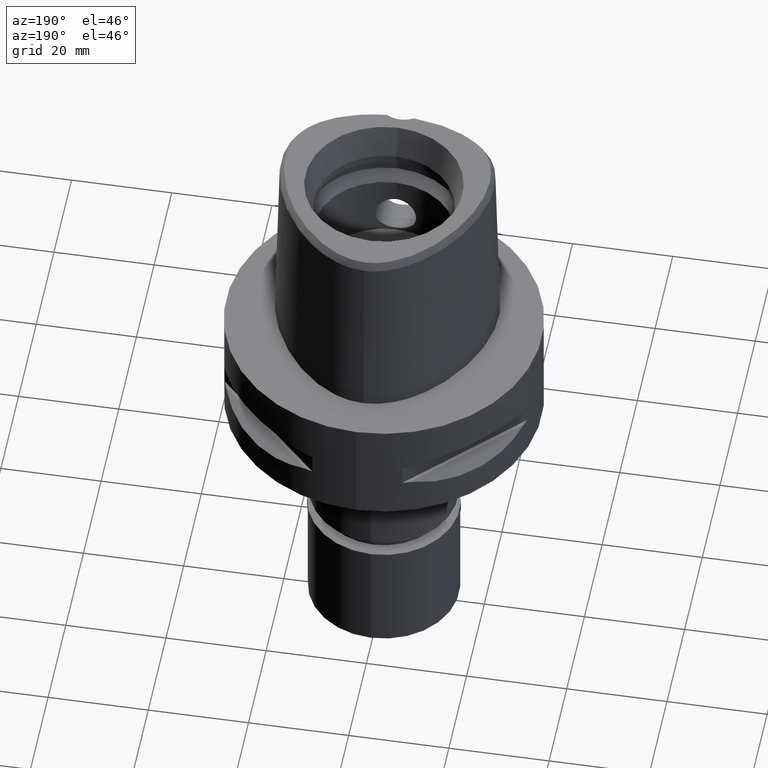
[diagram: clean part render]
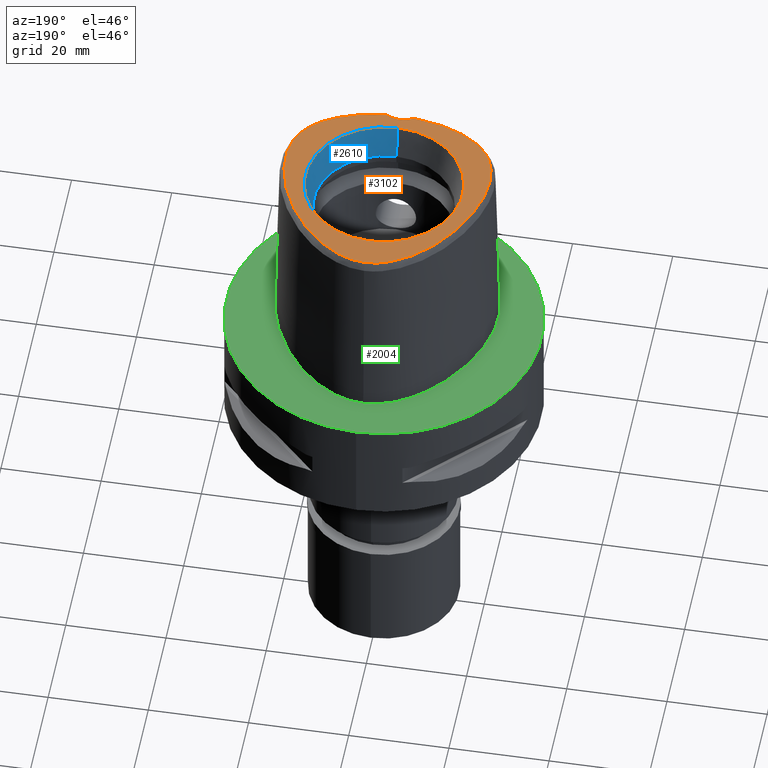
[diagram: same view with three faces highlighted in distinct colors, each labeled with its STEP entity id]
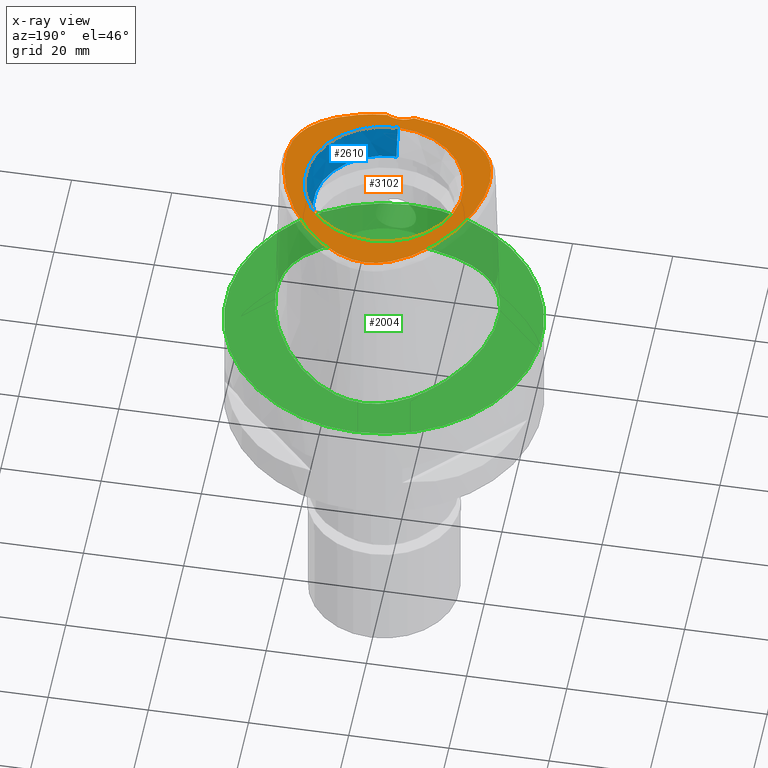
[diagram: x-ray of the same camera — body ghosted, the three highlighted faces saturated]
A machine part, auxiliary view with three faces highlighted in distinct colors.
The next image is the same camera in x-ray (body ghosted, the three faces saturated) — at least one of them is partly hidden behind the body in this view.
Their STEP definitions:

[orange] entity #3102 — the highlighted planar face has unit normal (0, 0, 1).
#25 = CARTESIAN_POINT ( 'NONE',  ( -18.67608643721489159, -11.03561202290967813, 38.00000000000001421 ) ) ;
#40 = CARTESIAN_POINT ( 'NONE',  ( -20.38301517462840096, -3.278344853327444408, 38.00000000000077449 ) ) ;
#62 = CARTESIAN_POINT ( 'NONE',  ( -14.34402387965647740, 12.54761970512988611, 37.99999999999791811 ) ) ;
#64 = CARTESIAN_POINT ( 'NONE',  ( 0.0000000000000000000, 15.71487483155999776, 38.00000000000000000 ) ) ;
#115 = CARTESIAN_POINT ( 'NONE',  ( -1.323674540693891899, 21.61098849316129744, 38.00000000000556355 ) ) ;
#141 = CARTESIAN_POINT ( 'NONE',  ( 7.655962789343429442, 19.09402979099836983, 37.99999999999688072 ) ) ;
#167 = ORIENTED_EDGE ( 'NONE', *, *, #4549, .F. ) ;
#169 = CARTESIAN_POINT ( 'NONE',  ( 7.606839420237615279, -18.00827588386392364, 37.99999999999635492 ) ) ;
#180 = FACE_BOUND ( 'NONE', #2902, .T. ) ;
#208 = CARTESIAN_POINT ( 'NONE',  ( 17.60373714028254710, 7.099883643193334315, 37.99999999999344880 ) ) ;
#223 = CIRCLE ( 'NONE', #1344, 5.000000000000000888 ) ;
#229 = CARTESIAN_POINT ( 'NONE',  ( 19.98468477322758829, -7.807876343103316685, 37.99999999999354117 ) ) ;
#330 = CARTESIAN_POINT ( 'NONE',  ( -2.735698246183316140, 21.34559102902547068, 38.00000000000018474 ) ) ;
#379 = CARTESIAN_POINT ( 'NONE',  ( -17.45119705493717177, -12.68365517585013613, 38.00000000000408562 ) ) ;
#428 = CARTESIAN_POINT ( 'NONE',  ( -19.54919922642418584, -9.228169790568388819, 38.00000000000528644 ) ) ;
#457 = CARTESIAN_POINT ( 'NONE',  ( 5.894487344450263677, 20.13186406532448558, 37.99999999999035794 ) ) ;
#488 = CARTESIAN_POINT ( 'NONE',  ( 2.736932690727115869, 21.34527940056887374, 37.99999999999725020 ) ) ;
#536 = CARTESIAN_POINT ( 'NONE',  ( 11.32341394162598647, -16.80569392800570938, 37.99999999999428724 ) ) ;
#579 = CARTESIAN_POINT ( 'NONE',  ( -2.682279906006999948, -18.78035848609999903, 38.00000000000000000 ) ) ;
#592 = CARTESIAN_POINT ( 'NONE',  ( 20.27923816685851222, -6.179850483268098493, 38.00000000000090239 ) ) ;
#614 = CARTESIAN_POINT ( 'NONE',  ( 3.529311563348779046, -18.70747079909717669, 37.99999999999515410 ) ) ;
#636 = CARTESIAN_POINT ( 'NONE',  ( 9.524842839488682600, 17.70516372194563104, 38.00000000000618172 ) ) ;
#642 = VERTEX_POINT ( 'NONE', #2812 ) ;
#708 = AXIS2_PLACEMENT_3D ( 'NONE', #3935, #2550, #4675 ) ;
#713 = CARTESIAN_POINT ( 'NONE',  ( -8.930096025510247060, -17.65000298921743749, 38.00000000000247269 ) ) ;
#739 = CARTESIAN_POINT ( 'NONE',  ( -6.759433772716738176, 19.65454812512971117, 37.99999999999712941 ) ) ;
#762 = CARTESIAN_POINT ( 'NONE',  ( -13.33457781970010103, -15.85148397417762745, 38.00000000000237321 ) ) ;
#765 = CARTESIAN_POINT ( 'NONE',  ( -15.71788912669212834, -14.29843101565890429, 37.99999999999246825 ) ) ;
#785 = CARTESIAN_POINT ( 'NONE',  ( -16.36032397153829621, -13.76458520344696623, 38.00000000000706990 ) ) ;
#796 = EDGE_CURVE ( 'NONE', #2696, #642, #3811, .T. ) ;
#814 = CARTESIAN_POINT ( 'NONE',  ( -9.524337278001539175, 17.70558492631560554, 37.99999999999879208 ) ) ;
#816 = CARTESIAN_POINT ( 'NONE',  ( 0.2185816947241155939, 21.68728795389857211, 38.00000000000073896 ) ) ;
#840 = CARTESIAN_POINT ( 'NONE',  ( 4.255661039973027471, 20.86618068830087580, 37.99999999999509015 ) ) ;
#911 = ORIENTED_EDGE ( 'NONE', *, *, #796, .F. ) ;
#941 = CARTESIAN_POINT ( 'NONE',  ( 18.67722910598130071, -11.03372143228235558, 37.99999999999684519 ) ) ;
#972 = CARTESIAN_POINT ( 'NONE',  ( 19.26272899268147754, 2.870227893750123105, 37.99999999999556621 ) ) ;
#973 = CARTESIAN_POINT ( 'NONE',  ( 0.0000000000000000000, -23.00000000000000000, 38.00000000000000000 ) ) ;
#997 = CARTESIAN_POINT ( 'NONE',  ( 6.196495988003739797, -18.31673538865457473, 38.00000000000121503 ) ) ;
#1023 = CARTESIAN_POINT ( 'NONE',  ( 2.682287482605000051, -18.78036330228999873, 38.00000000000000000 ) ) ;
#1046 = CARTESIAN_POINT ( 'NONE',  ( 19.28677546797197095, -9.867757137505920539, 37.99999999999603517 ) ) ;
#1095 = CARTESIAN_POINT ( 'NONE',  ( -18.24302769442392957, 5.671232572958031959, 37.99999999999445066 ) ) ;
#1114 = CIRCLE ( 'NONE', #708, 15.71487483155999776 ) ;
#1120 = CARTESIAN_POINT ( 'NONE',  ( -20.16012968312119114, -1.009698174524792602, 37.99999999999992184 ) ) ;
#1151 = CARTESIAN_POINT ( 'NONE',  ( -18.31748213707749073, -11.58791794388147522, 37.99999999999845812 ) ) ;
#1171 = CARTESIAN_POINT ( 'NONE',  ( -16.88647904405700473, 8.517821442302251356, 38.00000000000424905 ) ) ;
#1198 = DIRECTION ( 'NONE',  ( 1.000000000000000000, 0.0000000000000000000, 0.0000000000000000000 ) ) ;
#1333 = CARTESIAN_POINT ( 'NONE',  ( 16.09765529146882201, 9.909410920131987766, 37.99999999999207034 ) ) ;
#1344 = AXIS2_PLACEMENT_3D ( 'NONE', #973, #3165, #4350 ) ;
#1357 = CARTESIAN_POINT ( 'NONE',  ( 16.93855157777811016, -13.22377441789145713, 37.99999999999140954 ) ) ;
#1373 = ORIENTED_EDGE ( 'NONE', *, *, #4467, .F. ) ;
#1381 = CARTESIAN_POINT ( 'NONE',  ( 17.45306278053243787, -12.68156296993776699, 37.99999999999651834 ) ) ;
#1400 = CARTESIAN_POINT ( 'NONE',  ( 19.78323211893074429, -8.541156231035577306, 37.99999999999393907 ) ) ;
#1474 = CARTESIAN_POINT ( 'NONE',  ( -20.40060226222573192, -4.311417605381429041, 38.00000000000243716 ) ) ;
#1501 = CARTESIAN_POINT ( 'NONE',  ( -19.78262210840022917, -8.543146992552911101, 38.00000000000309086 ) ) ;
#1526 = VERTEX_POINT ( 'NONE', #64 ) ;
#1530 = CARTESIAN_POINT ( 'NONE',  ( -20.15090095364692857, -7.024227649787118999, 38.00000000000659384 ) ) ;
#1551 = CARTESIAN_POINT ( 'NONE',  ( -19.26324493738890808, 2.868570891457058458, 38.00000000000454747 ) ) ;
#1574 = CARTESIAN_POINT ( 'NONE',  ( -5.893543501600752244, 20.13235399352085864, 38.00000000000321876 ) ) ;
#1577 = CARTESIAN_POINT ( 'NONE',  ( 5.059249257021400048, 20.53399274679341957, 37.99999999999879918 ) ) ;
#1643 = B_SPLINE_CURVE_WITH_KNOTS ( 'NONE', 3,
 ( #2003, #816, #1657, #4178, #3828, #488, #1946, #840, #1577, #457, #3475, #141, #2830, #636, #3187, #4674, #2503, #2898, #2081, #1782, #1333, #3547, #208, #4698, #3955, #972, #3262, #1708, #2483, #2154, #4750, #3902, #2862, #592, #4371, #229, #1400, #2104, #1046, #1758, #941, #1733, #3239, #1381, #1357, #4728, #3933, #4329, #3565, #3878, #3210, #536, #1684, #3614, #169, #997, #2048, #614, #2810, #2878 ),
 .UNSPECIFIED., .F., .F.,
 ( 4, 1, 1, 1, 1, 1, 1, 1, 1, 1, 1, 1, 1, 1, 1, 1, 1, 1, 1, 1, 1, 1, 1, 1, 1, 1, 1, 1, 1, 1, 1, 1, 1, 1, 1, 1, 1, 1, 1, 1, 1, 1, 1, 1, 1, 1, 1, 1, 1, 1, 1, 1, 1, 1, 1, 1, 1, 4 ),
 ( 0.0000000000000000000, 0.01775854187129999318, 0.03551708374169992855, 0.05327562561200005486, 0.07103416748239999023, 0.08879270935270000553, 0.1065512512231000519, 0.1243097930933999562, 0.1420683349638000026, 0.1598268768341000179, 0.1775854187044000332, 0.1953439605747999686, 0.2131025024450999839, 0.2308610443155000302, 0.2486195861857999345, 0.2663781280563000120, 0.2841366699266000273, 0.3018952117970000737, 0.3196537536672999780, 0.3374122955377000244, 0.3551708374080000397, 0.3729293792782999439, 0.3906879211486999903, 0.4084464630190000056, 0.4262050048894000520, 0.4439635467596999563, 0.4617220886301000027, 0.4794806305004000180, 0.4972391723707999533, 0.5149977142410999686, 0.5327562561113999839, 0.5505147979818000303, 0.5682733398521000456, 0.5860318817224999810, 0.6037904235927999963, 0.6215489654632000427, 0.6393075073334999470, 0.6570660492038999934, 0.6748245910742000087, 0.6925831329445000240, 0.7103416748149000703, 0.7281002166851999746, 0.7458587585556000210, 0.7636173004259000363, 0.7813758422962999717, 0.7991343841665999870, 0.8168929260370000334, 0.8346514679073000487, 0.8524100097776999840, 0.8701685516479999993, 0.8879270935183000146, 0.9056856353886799660, 0.9234441772589799813, 0.9412027191293600437, 0.9589612609997000270, 0.9767198028700500023, 0.9944783447403919840, 1.000000000000000000 ),
 .UNSPECIFIED. ) ;
#1657 = CARTESIAN_POINT ( 'NONE',  ( 0.6513209347955627448, 21.67370899611253776, 37.99999999999719336 ) ) ;
#1684 = CARTESIAN_POINT ( 'NONE',  ( 10.17751632998327871, -17.24426134458635218, 37.99999999999393907 ) ) ;
#1708 = CARTESIAN_POINT ( 'NONE',  ( 19.94150023628100143, 0.2261566111946153868, 38.00000000000386535 ) ) ;
#1733 = CARTESIAN_POINT ( 'NONE',  ( 18.31883910943015792, -11.58595831187905922, 37.99999999999739941 ) ) ;
#1758 = CARTESIAN_POINT ( 'NONE',  ( 18.99619228226299583, -10.46780014453647922, 37.99999999999157296 ) ) ;
#1782 = CARTESIAN_POINT ( 'NONE',  ( 15.24661770199270094, 11.25762885478263620, 37.99999999999809575 ) ) ;
#1857 = CARTESIAN_POINT ( 'NONE',  ( -13.40435640711313425, 13.76268382997153417, 37.99999999999719336 ) ) ;
#1877 = CARTESIAN_POINT ( 'NONE',  ( -3.522896839654285905, -18.70811514173194823, 37.99999999999606359 ) ) ;
#1924 = CARTESIAN_POINT ( 'NONE',  ( -16.93638123745366642, -13.22593246128692890, 37.99999999999509015 ) ) ;
#1944 = CARTESIAN_POINT ( 'NONE',  ( -8.578220530113545905, 18.44656747109329942, 38.00000000000211742 ) ) ;
#1946 = CARTESIAN_POINT ( 'NONE',  ( 3.482188079159817651, 21.13472718027783515, 37.99999999999651124 ) ) ;
#2003 = CARTESIAN_POINT ( 'NONE',  ( -3.470663397159000143E-11, 21.68728795390000030, 38.00000000000000000 ) ) ;
#2010 = FACE_OUTER_BOUND ( 'NONE', #4819, .T. ) ;
#2048 = CARTESIAN_POINT ( 'NONE',  ( 4.715576077241831143, -18.56597918135709691, 37.99999999999436540 ) ) ;
#2073 = CARTESIAN_POINT ( 'NONE',  ( 0.0000000000000000000, -15.71487483155999776, 38.00000000000000000 ) ) ;
#2081 = CARTESIAN_POINT ( 'NONE',  ( 14.34383722811242201, 12.54786717290306264, 37.99999999999106848 ) ) ;
#2104 = CARTESIAN_POINT ( 'NONE',  ( 19.54993126782195034, -9.226212439885991046, 38.00000000000127898 ) ) ;
#2154 = CARTESIAN_POINT ( 'NONE',  ( 20.30478359882114958, -2.175347700950478469, 37.99999999999813127 ) ) ;
#2161 = ORIENTED_EDGE ( 'NONE', *, *, #3814, .F. ) ;
#2226 = CARTESIAN_POINT ( 'NONE',  ( -3.481017203588589570, 21.13509756881191137, 37.99999999999405276 ) ) ;
#2253 = CARTESIAN_POINT ( 'NONE',  ( -4.706994425064301879, -18.56721852572246689, 38.00000000000279954 ) ) ;
#2276 = CARTESIAN_POINT ( 'NONE',  ( -18.99520880204203621, -10.46968343926149281, 38.00000000000094502 ) ) ;
#2329 = CARTESIAN_POINT ( 'NONE',  ( -7.655222869371701933, 19.09452359226145646, 37.99999999999619149 ) ) ;
#2394 = DIRECTION ( 'NONE',  ( 0.0000000000000000000, 0.0000000000000000000, 1.000000000000000000 ) ) ;
#2409 = CARTESIAN_POINT ( 'NONE',  ( -0.6498990081534614660, 21.67378274708271135, 37.99999999999803890 ) ) ;
#2483 = CARTESIAN_POINT ( 'NONE',  ( 20.15982952131960104, -1.007721426051716440, 37.99999999999926104 ) ) ;
#2503 = CARTESIAN_POINT ( 'NONE',  ( 12.44125753246576949, 14.89118158853743523, 37.99999999999448619 ) ) ;
#2550 = DIRECTION ( 'NONE',  ( 0.0000000000000000000, 0.0000000000000000000, 1.000000000000000000 ) ) ;
#2594 = CARTESIAN_POINT ( 'NONE',  ( -15.24692477332176388, 11.25717358965905568, 38.00000000000036238 ) ) ;
#2618 = CARTESIAN_POINT ( 'NONE',  ( -12.44116897270992972, 14.89128547410102499, 37.99999999999888445 ) ) ;
#2667 = CARTESIAN_POINT ( 'NONE',  ( -16.09805956313287112, 9.908742513516449080, 38.00000000000366640 ) ) ;
#2689 = CARTESIAN_POINT ( 'NONE',  ( -15.00295592773549025, -14.82617991125483314, 37.99999999999972999 ) ) ;
#2696 = VERTEX_POINT ( 'NONE', #579 ) ;
#2810 = CARTESIAN_POINT ( 'NONE',  ( 2.845098933833441368, -18.76733062685951481, 37.99999999999702993 ) ) ;
#2812 = CARTESIAN_POINT ( 'NONE',  ( -3.470663397159000143E-11, 21.68728795390000030, 38.00000000000000000 ) ) ;
#2830 = CARTESIAN_POINT ( 'NONE',  ( 8.578848111817299227, 18.44609846599188074, 37.99999999999659650 ) ) ;
#2862 = CARTESIAN_POINT ( 'NONE',  ( 20.36412151360626410, -5.276385427454122201, 37.99999999999447908 ) ) ;
#2878 = CARTESIAN_POINT ( 'NONE',  ( 2.682287482605000051, -18.78036330228999873, 38.00000000000000000 ) ) ;
#2898 = CARTESIAN_POINT ( 'NONE',  ( 13.40430406168293942, 13.76274261012875755, 37.99999999999908340 ) ) ;
#2902 = EDGE_LOOP ( 'NONE', ( #4182, #1373 ) ) ;
#2928 = CIRCLE ( 'NONE', #4003, 15.71487483155999776 ) ;
#3001 = CARTESIAN_POINT ( 'NONE',  ( -7.599370508970371141, -18.01010694911391141, 38.00000000000679989 ) ) ;
#3004 = DIRECTION ( 'NONE',  ( 0.0000000000000000000, -1.000000000000000000, 0.0000000000000000000 ) ) ;
#3024 = CARTESIAN_POINT ( 'NONE',  ( -20.30498420086953004, -2.177378896258391539, 38.00000000000490274 ) ) ;
#3043 = CARTESIAN_POINT ( 'NONE',  ( -17.60426951086819258, 7.098774535281752840, 37.99999999999294431 ) ) ;
#3066 = CARTESIAN_POINT ( 'NONE',  ( -3.470663397159000143E-11, 21.68728795390000030, 38.00000000000000000 ) ) ;
#3102 = ADVANCED_FACE ( 'NONE', ( #2010, #180 ), #3864, .T. ) ;
#3165 = DIRECTION ( 'NONE',  ( 0.0000000000000000000, 0.0000000000000000000, 1.000000000000000000 ) ) ;
#3187 = CARTESIAN_POINT ( 'NONE',  ( 10.48999540691167276, 16.86597469870190125, 37.99999999999670308 ) ) ;
#3210 = CARTESIAN_POINT ( 'NONE',  ( 12.37622418509569044, -16.33871033286285268, 37.99999999999388933 ) ) ;
#3239 = CARTESIAN_POINT ( 'NONE',  ( 17.91165267839130237, -12.13575389397900750, 38.00000000000126477 ) ) ;
#3262 = CARTESIAN_POINT ( 'NONE',  ( 19.64387775268148317, 1.522048414458375021, 37.99999999999707967 ) ) ;
#3333 = CARTESIAN_POINT ( 'NONE',  ( -6.188376196366513149, -18.31830638231506114, 37.99999999999436540 ) ) ;
#3352 = CARTESIAN_POINT ( 'NONE',  ( -12.37132652997228099, -16.34104299087905687, 37.99999999999666045 ) ) ;
#3375 = CARTESIAN_POINT ( 'NONE',  ( -2.841965291530551774, -18.76757795571729304, 37.99999999999782574 ) ) ;
#3398 = CARTESIAN_POINT ( 'NONE',  ( -11.31790883120888935, -16.80796958613577274, 37.99999999999914735 ) ) ;
#3475 = CARTESIAN_POINT ( 'NONE',  ( 6.760281394351802753, 19.65404668909722119, 37.99999999999210587 ) ) ;
#3547 = CARTESIAN_POINT ( 'NONE',  ( 16.88599964843142587, 8.518708218769912577, 37.99999999999853628 ) ) ;
#3565 = CARTESIAN_POINT ( 'NONE',  ( 14.21382211799154582, -15.34284287400445734, 37.99999999999521805 ) ) ;
#3614 = CARTESIAN_POINT ( 'NONE',  ( 8.936919536467341274, -17.64796721715554995, 37.99999999999339906 ) ) ;
#3647 = EDGE_CURVE ( 'NONE', #4668, #1526, #2928, .T. ) ;
#3705 = CARTESIAN_POINT ( 'NONE',  ( -10.17136073854879896, -17.24644253470381727, 38.00000000000124345 ) ) ;
#3726 = CARTESIAN_POINT ( 'NONE',  ( -19.98419490691720313, -7.809898894995596308, 37.99999999999788969 ) ) ;
#3756 = CARTESIAN_POINT ( 'NONE',  ( -17.91005512243496511, -12.13778127739882429, 38.00000000000321165 ) ) ;
#3776 = CARTESIAN_POINT ( 'NONE',  ( -19.64434054693428067, 1.520253387635862818, 37.99999999999959499 ) ) ;
#3811 = B_SPLINE_CURVE_WITH_KNOTS ( 'NONE', 3,
 ( #4104, #3375, #1877, #2253, #3333, #3001, #713, #3705, #3398, #3352, #762, #4478, #2689, #765, #785, #1924, #379, #3756, #1151, #25, #2276, #4082, #428, #1501, #3726, #1530, #4449, #4823, #1474, #40, #3024, #1120, #4152, #3776, #1551, #4500, #1095, #3043, #1171, #2667, #2594, #62, #1857, #2618, #4125, #4520, #814, #1944, #2329, #739, #1574, #4426, #4056, #2226, #330, #3876, #115, #2409, #3899, #3066 ),
 .UNSPECIFIED., .F., .F.,
 ( 4, 1, 1, 1, 1, 1, 1, 1, 1, 1, 1, 1, 1, 1, 1, 1, 1, 1, 1, 1, 1, 1, 1, 1, 1, 1, 1, 1, 1, 1, 1, 1, 1, 1, 1, 1, 1, 1, 1, 1, 1, 1, 1, 1, 1, 1, 1, 1, 1, 1, 1, 1, 1, 1, 1, 1, 1, 4 ),
 ( 0.0000000000000000000, 0.005420919554200098744, 0.02318126027639999531, 0.04094160099879995407, 0.05870194172099996166, 0.07646228244330000035, 0.09422262316550000794, 0.1119829638877999356, 0.1297433046099999432, 0.1475036453321999508, 0.1652639860544999895, 0.1830243267768000281, 0.2007846674991000668, 0.2185450082212999634, 0.2363053489436000021, 0.2540656896658000097, 0.2718260303881000484, 0.2895863711103000560, 0.3073467118325999836, 0.3251070525547999912, 0.3428673932771000299, 0.3606277339994000686, 0.3783880747216000762, 0.3961484154438998928, 0.4139087561661000114, 0.4316690968884000501, 0.4494294376106000577, 0.4671897783328999854, 0.4849501190552000240, 0.5027104597774000316, 0.5204708004996999593, 0.5382311412219000779, 0.5559914819442000056, 0.5737518226664000132, 0.5915121633886999408, 0.6092725041108999484, 0.6270328448331999871, 0.6447931855555000258, 0.6625535262777000334, 0.6803138669999999610, 0.6980742077221999686, 0.7158345484445000073, 0.7335948891667000149, 0.7513552298890000536, 0.7691155706112000612, 0.7868759113336000199, 0.8046362520558000275, 0.8223965927780999552, 0.8401569335002999628, 0.8579172742224999704, 0.8756776149448000091, 0.8934379556670000166, 0.9111982963893099363, 0.9289586371115700070, 0.9467189778338299666, 0.9644793185560800453, 0.9822396592783400049, 1.000000000000000000 ),
 .UNSPECIFIED. ) ;
#3814 = EDGE_CURVE ( 'NONE', #642, #4562, #1643, .T. ) ;
#3828 = CARTESIAN_POINT ( 'NONE',  ( 2.018320379028506917, 21.50256508436126524, 37.99999999999727152 ) ) ;
#3864 = PLANE ( 'NONE',  #4313 ) ;
#3876 = CARTESIAN_POINT ( 'NONE',  ( -2.017025177696247784, 21.50280829368237079, 37.99999999999483435 ) ) ;
#3878 = CARTESIAN_POINT ( 'NONE',  ( 13.33890749495940220, -15.84912955619854280, 37.99999999999117506 ) ) ;
#3899 = CARTESIAN_POINT ( 'NONE',  ( -0.2181979014508364789, 21.68728795389106523, 37.99999999999602807 ) ) ;
#3902 = CARTESIAN_POINT ( 'NONE',  ( 20.40062138794844060, -4.309334958867312437, 38.00000000000334666 ) ) ;
#3933 = CARTESIAN_POINT ( 'NONE',  ( 15.72078707640354978, -14.29615620309121482, 37.99999999999423039 ) ) ;
#3935 = CARTESIAN_POINT ( 'NONE',  ( 0.0000000000000000000, 0.0000000000000000000, 38.00000000000000000 ) ) ;
#3955 = CARTESIAN_POINT ( 'NONE',  ( 18.79595068776236033, 4.257753965102206273, 37.99999999999563727 ) ) ;
#4003 = AXIS2_PLACEMENT_3D ( 'NONE', #4780, #4429, #3004 ) ;
#4056 = CARTESIAN_POINT ( 'NONE',  ( -4.254559144977628549, 20.86660163697029446, 37.99999999999715783 ) ) ;
#4082 = CARTESIAN_POINT ( 'NONE',  ( -19.28591707036418512, -9.869682450886472225, 38.00000000000019895 ) ) ;
#4104 = CARTESIAN_POINT ( 'NONE',  ( -2.682279906006999948, -18.78035848609999903, 38.00000000000000000 ) ) ;
#4125 = CARTESIAN_POINT ( 'NONE',  ( -11.46564124494471670, 15.92741340513573967, 37.99999999999416644 ) ) ;
#4152 = CARTESIAN_POINT ( 'NONE',  ( -19.94188961899223500, 0.2242544969876070216, 38.00000000000031264 ) ) ;
#4178 = CARTESIAN_POINT ( 'NONE',  ( 1.325020189552541972, 21.61081414409233403, 37.99999999999968026 ) ) ;
#4182 = ORIENTED_EDGE ( 'NONE', *, *, #3647, .F. ) ;
#4313 = AXIS2_PLACEMENT_3D ( 'NONE', #4529, #2394, #1198 ) ;
#4329 = CARTESIAN_POINT ( 'NONE',  ( 15.00628712263586451, -14.82385870794742999, 37.99999999999500488 ) ) ;
#4350 = DIRECTION ( 'NONE',  ( 0.0000000000000000000, 1.000000000000000000, 0.0000000000000000000 ) ) ;
#4371 = CARTESIAN_POINT ( 'NONE',  ( 20.15127154947524701, -7.022178451341056338, 38.00000000000287059 ) ) ;
#4426 = CARTESIAN_POINT ( 'NONE',  ( -5.058220461389248968, 20.53445508814270326, 37.99999999999666755 ) ) ;
#4429 = DIRECTION ( 'NONE',  ( 0.0000000000000000000, 0.0000000000000000000, 1.000000000000000000 ) ) ;
#4449 = CARTESIAN_POINT ( 'NONE',  ( -20.27898581532366151, -6.181921586190108897, 38.00000000000118661 ) ) ;
#4467 = EDGE_CURVE ( 'NONE', #1526, #4668, #1114, .T. ) ;
#4478 = CARTESIAN_POINT ( 'NONE',  ( -14.21001600787482921, -15.34519100086069798, 38.00000000000105871 ) ) ;
#4500 = CARTESIAN_POINT ( 'NONE',  ( -18.79649882724566368, 4.256255933891596399, 37.99999999999237588 ) ) ;
#4520 = CARTESIAN_POINT ( 'NONE',  ( -10.48962422759924351, 16.86631853279302362, 38.00000000000651568 ) ) ;
#4529 = CARTESIAN_POINT ( 'NONE',  ( 0.0000000000000000000, 0.0000000000000000000, 38.00000000000000000 ) ) ;
#4549 = EDGE_CURVE ( 'NONE', #4562, #2696, #223, .T. ) ;
#4562 = VERTEX_POINT ( 'NONE', #1023 ) ;
#4668 = VERTEX_POINT ( 'NONE', #2073 ) ;
#4674 = CARTESIAN_POINT ( 'NONE',  ( 11.46587147800244644, 15.92717600803037925, 37.99999999999953815 ) ) ;
#4675 = DIRECTION ( 'NONE',  ( 0.0000000000000000000, 1.000000000000000000, 0.0000000000000000000 ) ) ;
#4698 = CARTESIAN_POINT ( 'NONE',  ( 18.24247239569431400, 5.672548708072588042, 37.99999999999821654 ) ) ;
#4728 = CARTESIAN_POINT ( 'NONE',  ( 16.36283630828681268, -13.76236604535098174, 38.00000000000094502 ) ) ;
#4750 = CARTESIAN_POINT ( 'NONE',  ( 20.38292172607308572, -3.276278498261608885, 37.99999999999542410 ) ) ;
#4780 = CARTESIAN_POINT ( 'NONE',  ( 0.0000000000000000000, 0.0000000000000000000, 38.00000000000000000 ) ) ;
#4819 = EDGE_LOOP ( 'NONE', ( #2161, #911, #167 ) ) ;
#4823 = CARTESIAN_POINT ( 'NONE',  ( -20.36398648680008350, -5.278470727085138314, 37.99999999999999289 ) ) ;

[blue] entity #2610 — the highlighted conical surface has half-angle 15 deg.
#64 = CARTESIAN_POINT ( 'NONE',  ( 0.0000000000000000000, 15.71487483155999776, 38.00000000000000000 ) ) ;
#251 = LINE ( 'NONE', #1416, #4542 ) ;
#721 = CONICAL_SURFACE ( 'NONE', #3071, 14.85743741577999977, 0.2617993877991000029 ) ;
#830 = VERTEX_POINT ( 'NONE', #3113 ) ;
#926 = CARTESIAN_POINT ( 'NONE',  ( 0.0000000000000000000, 14.00000000000000000, 31.60000000000000142 ) ) ;
#1416 = CARTESIAN_POINT ( 'NONE',  ( 0.0000000000000000000, -14.00000000000000000, 31.60000000000000142 ) ) ;
#1480 = ORIENTED_EDGE ( 'NONE', *, *, #3484, .F. ) ;
#1526 = VERTEX_POINT ( 'NONE', #64 ) ;
#1638 = ORIENTED_EDGE ( 'NONE', *, *, #3647, .T. ) ;
#1746 = DIRECTION ( 'NONE',  ( 0.0000000000000000000, 1.000000000000000000, 0.0000000000000000000 ) ) ;
#1771 = CARTESIAN_POINT ( 'NONE',  ( 0.0000000000000000000, 0.0000000000000000000, 34.79999999999999716 ) ) ;
#1812 = DIRECTION ( 'NONE',  ( 0.0000000000000000000, 0.0000000000000000000, 1.000000000000000000 ) ) ;
#2051 = DIRECTION ( 'NONE',  ( 0.0000000000000000000, 0.0000000000000000000, 1.000000000000000000 ) ) ;
#2073 = CARTESIAN_POINT ( 'NONE',  ( 0.0000000000000000000, -15.71487483155999776, 38.00000000000000000 ) ) ;
#2171 = EDGE_CURVE ( 'NONE', #830, #4668, #251, .T. ) ;
#2206 = EDGE_LOOP ( 'NONE', ( #1480, #3605, #4046, #1638 ) ) ;
#2256 = DIRECTION ( 'NONE',  ( 0.0000000000000000000, 0.2588190451025869088, 0.9659258262890505486 ) ) ;
#2610 = ADVANCED_FACE ( 'NONE', ( #3294 ), #721, .F. ) ;
#2699 = VECTOR ( 'NONE', #2256, 1000.000000000000000 ) ;
#2831 = CIRCLE ( 'NONE', #3438, 14.00000000000000000 ) ;
#2928 = CIRCLE ( 'NONE', #4003, 15.71487483155999776 ) ;
#3004 = DIRECTION ( 'NONE',  ( 0.0000000000000000000, -1.000000000000000000, 0.0000000000000000000 ) ) ;
#3071 = AXIS2_PLACEMENT_3D ( 'NONE', #1771, #1812, #1746 ) ;
#3081 = VERTEX_POINT ( 'NONE', #926 ) ;
#3113 = CARTESIAN_POINT ( 'NONE',  ( 0.0000000000000000000, -14.00000000000000000, 31.60000000000000142 ) ) ;
#3191 = CARTESIAN_POINT ( 'NONE',  ( 0.0000000000000000000, 0.0000000000000000000, 31.60000000000000142 ) ) ;
#3294 = FACE_OUTER_BOUND ( 'NONE', #2206, .T. ) ;
#3438 = AXIS2_PLACEMENT_3D ( 'NONE', #3191, #2051, #3548 ) ;
#3484 = EDGE_CURVE ( 'NONE', #3081, #1526, #3707, .T. ) ;
#3548 = DIRECTION ( 'NONE',  ( 0.0000000000000000000, -1.000000000000000000, 0.0000000000000000000 ) ) ;
#3605 = ORIENTED_EDGE ( 'NONE', *, *, #4497, .F. ) ;
#3647 = EDGE_CURVE ( 'NONE', #4668, #1526, #2928, .T. ) ;
#3707 = LINE ( 'NONE', #4084, #2699 ) ;
#4003 = AXIS2_PLACEMENT_3D ( 'NONE', #4780, #4429, #3004 ) ;
#4046 = ORIENTED_EDGE ( 'NONE', *, *, #2171, .T. ) ;
#4084 = CARTESIAN_POINT ( 'NONE',  ( 0.0000000000000000000, 14.00000000000000000, 31.60000000000000142 ) ) ;
#4364 = DIRECTION ( 'NONE',  ( 0.0000000000000000000, -0.2588190451025869088, 0.9659258262890505486 ) ) ;
#4429 = DIRECTION ( 'NONE',  ( 0.0000000000000000000, 0.0000000000000000000, 1.000000000000000000 ) ) ;
#4497 = EDGE_CURVE ( 'NONE', #830, #3081, #2831, .T. ) ;
#4542 = VECTOR ( 'NONE', #4364, 1000.000000000000000 ) ;
#4668 = VERTEX_POINT ( 'NONE', #2073 ) ;
#4780 = CARTESIAN_POINT ( 'NONE',  ( 0.0000000000000000000, 0.0000000000000000000, 38.00000000000000000 ) ) ;

[green] entity #2004 — the highlighted planar face has unit normal (0, 0, -1).
#17 = CARTESIAN_POINT ( 'NONE',  ( 16.95889173002427341, -15.67838867706965900, -2.630565840567970770E-07 ) ) ;
#65 = CARTESIAN_POINT ( 'NONE',  ( -14.67337964306607923, -17.21410156051415541, 9.097698115689833998E-08 ) ) ;
#113 = CARTESIAN_POINT ( 'NONE',  ( 18.06826689099458605, 10.43171875330947174, -2.630565840567970770E-07 ) ) ;
#134 = CARTESIAN_POINT ( 'NONE',  ( 20.74942741502001908, 4.657187502242146948, -2.630565840567970770E-07 ) ) ;
#186 = DIRECTION ( 'NONE',  ( 0.0000000000000000000, -1.000000000000000000, 0.0000000000000000000 ) ) ;
#206 = CARTESIAN_POINT ( 'NONE',  ( 0.0000000000000000000, 0.0000000000000000000, 0.0000000000000000000 ) ) ;
#244 = CIRCLE ( 'NONE', #4156, 31.50000000000000000 ) ;
#292 = EDGE_CURVE ( 'NONE', #4772, #1871, #2471, .T. ) ;
#374 = CARTESIAN_POINT ( 'NONE',  ( 2.113823673456931118, -20.67500000657368275, -2.630565840567970770E-07 ) ) ;
#406 = CARTESIAN_POINT ( 'NONE',  ( 0.0000000000000000000, -31.50000000000000000, 0.0000000000000000000 ) ) ;
#425 = CARTESIAN_POINT ( 'NONE',  ( 19.64947366396549100, -12.82525391012334914, -2.630565840567970770E-07 ) ) ;
#430 = CARTESIAN_POINT ( 'NONE',  ( -5.098437016434184343, 22.52602538850953806, 9.097698115689833998E-08 ) ) ;
#810 = CARTESIAN_POINT ( 'NONE',  ( 18.56841065620621833, -14.16937988734157550, -2.630565840567970770E-07 ) ) ;
#896 = CARTESIAN_POINT ( 'NONE',  ( -16.95889172452467264, -15.67838867007484360, 9.097698115689833998E-08 ) ) ;
#918 = CARTESIAN_POINT ( 'NONE',  ( -14.40795638783079546, 15.64093749852462523, 9.097698115689833998E-08 ) ) ;
#934 = CARTESIAN_POINT ( 'NONE',  ( 21.97832648437702474, -0.2810937488494387182, -2.630565840567970770E-07 ) ) ;
#1032 = EDGE_LOOP ( 'NONE', ( #2600, #2773 ) ) ;
#1087 = EDGE_CURVE ( 'NONE', #1871, #4772, #244, .T. ) ;
#1291 = CARTESIAN_POINT ( 'NONE',  ( -20.74942740664785390, 4.657187499224233918, 9.097698115689833998E-08 ) ) ;
#1328 = CARTESIAN_POINT ( 'NONE',  ( 14.40795639463833133, 15.64093750426995300, -2.630565840567970770E-07 ) ) ;
#1631 = CARTESIAN_POINT ( 'NONE',  ( -18.06826688328639108, 10.43171874886016504, 9.097698115689833998E-08 ) ) ;
#1648 = CARTESIAN_POINT ( 'NONE',  ( 0.8548392427746057676, 23.47500000658105890, -2.630565840567970770E-07 ) ) ;
#1672 = AXIS2_PLACEMENT_3D ( 'NONE', #2501, #4004, #3973 ) ;
#1674 = CARTESIAN_POINT ( 'NONE',  ( 0.0000000000000000000, 0.0000000000000000000, 0.0000000000000000000 ) ) ;
#1871 = VERTEX_POINT ( 'NONE', #3854 ) ;
#1894 = CARTESIAN_POINT ( 'NONE',  ( 6.341471020380248014, -20.29812500651166474, -2.630565840567971299E-07 ) ) ;
#1940 = CARTESIAN_POINT ( 'NONE',  ( 11.23259756953727972, -18.89324219370915614, -2.630565840567970770E-07 ) ) ;
#1942 = EDGE_CURVE ( 'NONE', #3834, #2133, #2175, .T. ) ;
#1973 = CARTESIAN_POINT ( 'NONE',  ( -10.74572890912541645, 19.17433593574524409, 9.097698115689833998E-08 ) ) ;
#1994 = CARTESIAN_POINT ( 'NONE',  ( 22.24453908514527001, -4.100468749961065917, -2.630565840567970770E-07 ) ) ;
#2004 = ADVANCED_FACE ( 'NONE', ( #3817, #3874 ), #2827, .F. ) ;
#2025 = CARTESIAN_POINT ( 'NONE',  ( -0.8548392421353443460, 23.47499999772602308, 9.097698115689833998E-08 ) ) ;
#2042 = CARTESIAN_POINT ( 'NONE',  ( 6.748353224512000053E-11, 23.47499999998000320, 1.585028404822999899E-13 ) ) ;
#2133 = VERTEX_POINT ( 'NONE', #2585 ) ;
#2175 = B_SPLINE_CURVE_WITH_KNOTS ( 'NONE', 3,
 ( #3722, #374, #1894, #1940, #3369, #17, #810, #425, #2425, #3492, #3111, #3471, #1994, #934, #134, #113, #1328, #2474, #2448, #3849, #4570, #1648, #2042 ),
 .UNSPECIFIED., .F., .F.,
 ( 4, 1, 1, 1, 1, 1, 1, 1, 1, 1, 1, 1, 1, 1, 1, 1, 1, 1, 1, 1, 4 ),
 ( 0.0000000000000000000, 0.08333333333348000305, 0.1666666666668000230, 0.2083333333334000115, 0.2500000000000999756, 0.2916666666666999919, 0.3125000000000000000, 0.3333333333333000081, 0.3541666666666999919, 0.3750000000000000000, 0.4166666666666999919, 0.4583333333332000326, 0.4999999999998999689, 0.5833333333332000326, 0.6666666666664999852, 0.7499999999998000488, 0.8333333333329999704, 0.8749999999997000177, 0.9166666666664000651, 0.9583333333329999704, 1.000000000000000000 ),
 .UNSPECIFIED. ) ;
#2411 = CARTESIAN_POINT ( 'NONE',  ( -6.341471018807172122, -20.29812499775147927, 9.097698115689833998E-08 ) ) ;
#2425 = CARTESIAN_POINT ( 'NONE',  ( 20.34961799127496818, -11.74885742516477904, -2.630565840567970770E-07 ) ) ;
#2432 = CARTESIAN_POINT ( 'NONE',  ( -11.23259756649648189, -18.89324218535866606, 9.097698115689833998E-08 ) ) ;
#2448 = CARTESIAN_POINT ( 'NONE',  ( 7.571159437682165816, 21.31457031818990089, -2.630565840567970770E-07 ) ) ;
#2471 = CIRCLE ( 'NONE', #1672, 31.50000000000000000 ) ;
#2474 = CARTESIAN_POINT ( 'NONE',  ( 10.74572891483878934, 19.17433594255937379, -2.630565840567970770E-07 ) ) ;
#2501 = CARTESIAN_POINT ( 'NONE',  ( 0.0000000000000000000, 0.0000000000000000000, 0.0000000000000000000 ) ) ;
#2585 = CARTESIAN_POINT ( 'NONE',  ( 6.748353224512000053E-11, 23.47499999998000320, 1.585028404822999899E-13 ) ) ;
#2600 = ORIENTED_EDGE ( 'NONE', *, *, #3718, .F. ) ;
#2763 = CARTESIAN_POINT ( 'NONE',  ( -20.93173252003211360, -10.60431640532882014, 9.097698115689833998E-08 ) ) ;
#2773 = ORIENTED_EDGE ( 'NONE', *, *, #1942, .F. ) ;
#2789 = CARTESIAN_POINT ( 'NONE',  ( -19.64947365679667968, -12.82525390490606654, 9.097698115689833998E-08 ) ) ;
#2827 = PLANE ( 'NONE',  #4081 ) ;
#3045 = CARTESIAN_POINT ( 'NONE',  ( -20.34961798359399765, -11.74885742073069927, 9.097698115689833998E-08 ) ) ;
#3111 = CARTESIAN_POINT ( 'NONE',  ( 21.55524826642664138, -8.996025392505043072, -2.630565840567970770E-07 ) ) ;
#3116 = CARTESIAN_POINT ( 'NONE',  ( -22.05732874095811624, -6.847636718424819691, 9.097698115689833998E-08 ) ) ;
#3139 = CARTESIAN_POINT ( 'NONE',  ( -2.564517726489806027, 23.29328124775888043, 9.097698115689833998E-08 ) ) ;
#3208 = B_SPLINE_CURVE_WITH_KNOTS ( 'NONE', 3,
 ( #3799, #2025, #3139, #430, #4204, #1973, #918, #1631, #1291, #3449, #4628, #3116, #3778, #2763, #3045, #2789, #4230, #896, #65, #2432, #2411, #4254, #4575 ),
 .UNSPECIFIED., .F., .F.,
 ( 4, 1, 1, 1, 1, 1, 1, 1, 1, 1, 1, 1, 1, 1, 1, 1, 1, 1, 1, 1, 4 ),
 ( 0.0000000000000000000, 0.04166666666770999644, 0.08333333333431000578, 0.1250000000009000023, 0.1666666666676000219, 0.2500000000008000267, 0.3333333333340000038, 0.4166666666672000363, 0.5000000000004000134, 0.5416666666671000607, 0.5833333333336000459, 0.6250000000002999823, 0.6458333333335000148, 0.6666666666668999985, 0.6875000000001999512, 0.7083333333335000148, 0.7500000000001000311, 0.7916666666667000474, 0.8333333333333000637, 0.9166666666666000163, 1.000000000000000000 ),
 .UNSPECIFIED. ) ;
#3234 = DIRECTION ( 'NONE',  ( 0.0000000000000000000, 0.0000000000000000000, -1.000000000000000000 ) ) ;
#3369 = CARTESIAN_POINT ( 'NONE',  ( 14.67337964745646950, -17.21410156823449356, -2.630565840567970770E-07 ) ) ;
#3449 = CARTESIAN_POINT ( 'NONE',  ( -21.97832647561342156, -0.2810937503979882290, 9.097698115689833998E-08 ) ) ;
#3471 = CARTESIAN_POINT ( 'NONE',  ( 22.05732874976065716, -6.847636719689412566, -2.630565840567970770E-07 ) ) ;
#3492 = CARTESIAN_POINT ( 'NONE',  ( 20.93173252813967622, -10.60431640892486627, -2.630565840567970770E-07 ) ) ;
#3718 = EDGE_CURVE ( 'NONE', #2133, #3834, #3208, .T. ) ;
#3722 = CARTESIAN_POINT ( 'NONE',  ( -1.465428451571000222E-11, -20.67499999999999716, 1.614634352146999882E-13 ) ) ;
#3778 = CARTESIAN_POINT ( 'NONE',  ( -21.55524825791045274, -8.996025389975200071, 9.097698115689833998E-08 ) ) ;
#3799 = CARTESIAN_POINT ( 'NONE',  ( 6.748353224512000053E-11, 23.47499999998000320, 1.585028404822999899E-13 ) ) ;
#3817 = FACE_OUTER_BOUND ( 'NONE', #4203, .T. ) ;
#3834 = VERTEX_POINT ( 'NONE', #4299 ) ;
#3849 = CARTESIAN_POINT ( 'NONE',  ( 5.098437019738033094, 22.52602539675663706, -2.630565840567970770E-07 ) ) ;
#3854 = CARTESIAN_POINT ( 'NONE',  ( 0.0000000000000000000, 31.50000000000000000, 0.0000000000000000000 ) ) ;
#3874 = FACE_BOUND ( 'NONE', #1032, .T. ) ;
#3973 = DIRECTION ( 'NONE',  ( 0.0000000000000000000, -1.000000000000000000, 0.0000000000000000000 ) ) ;
#4004 = DIRECTION ( 'NONE',  ( 0.0000000000000000000, 0.0000000000000000000, -1.000000000000000000 ) ) ;
#4081 = AXIS2_PLACEMENT_3D ( 'NONE', #1674, #4595, #186 ) ;
#4156 = AXIS2_PLACEMENT_3D ( 'NONE', #206, #3234, #4671 ) ;
#4203 = EDGE_LOOP ( 'NONE', ( #4223, #4808 ) ) ;
#4204 = CARTESIAN_POINT ( 'NONE',  ( -7.571159433198838329, 21.31457031052672946, 9.097698115689833998E-08 ) ) ;
#4223 = ORIENTED_EDGE ( 'NONE', *, *, #1087, .F. ) ;
#4230 = CARTESIAN_POINT ( 'NONE',  ( -18.56841064976843825, -14.16937988124191250, 9.097698115689833998E-08 ) ) ;
#4254 = CARTESIAN_POINT ( 'NONE',  ( -2.113823672929088460, -20.67499999772151398, 9.097698115689833998E-08 ) ) ;
#4299 = CARTESIAN_POINT ( 'NONE',  ( -1.465428451571000222E-11, -20.67499999999999716, 1.614634352146999882E-13 ) ) ;
#4570 = CARTESIAN_POINT ( 'NONE',  ( 2.564517728308376210, 23.29328125647911563, -2.630565840567970770E-07 ) ) ;
#4575 = CARTESIAN_POINT ( 'NONE',  ( -1.465428451571000222E-11, -20.67499999999999716, 1.614634352146999882E-13 ) ) ;
#4595 = DIRECTION ( 'NONE',  ( 0.0000000000000000000, 0.0000000000000000000, -1.000000000000000000 ) ) ;
#4628 = CARTESIAN_POINT ( 'NONE',  ( -22.24453907626518046, -4.100468750013646968, 9.097698115689833998E-08 ) ) ;
#4671 = DIRECTION ( 'NONE',  ( 0.0000000000000000000, 1.000000000000000000, 0.0000000000000000000 ) ) ;
#4772 = VERTEX_POINT ( 'NONE', #406 ) ;
#4808 = ORIENTED_EDGE ( 'NONE', *, *, #292, .F. ) ;